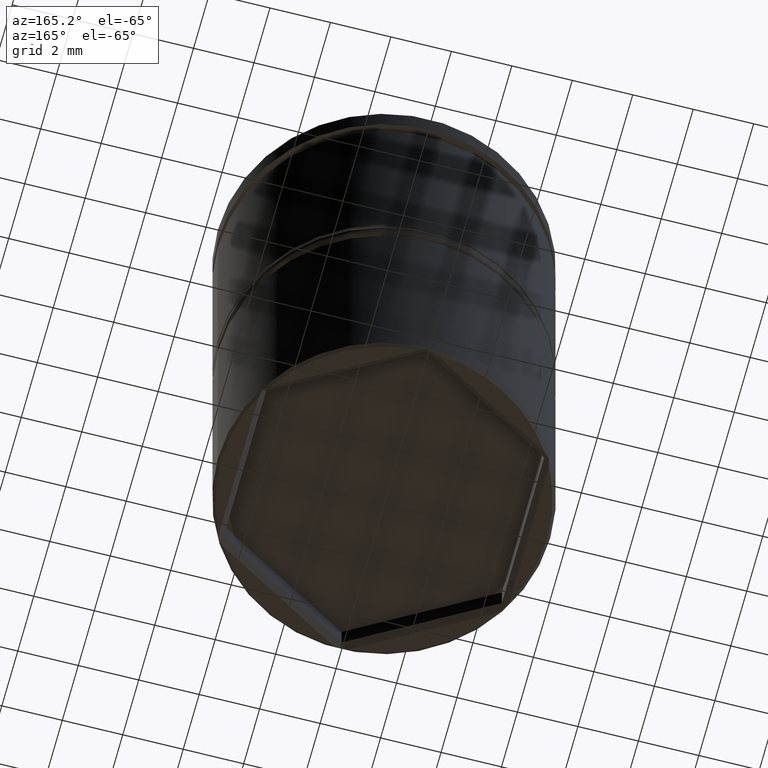
[diagram: clean part render]
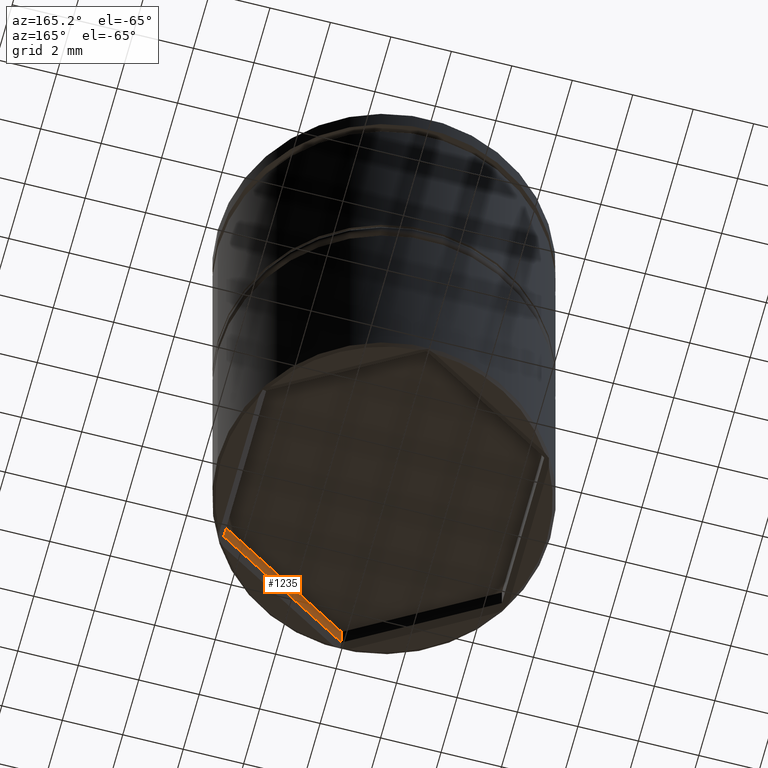
[diagram: same view with one face highlighted and labeled with its STEP entity id]
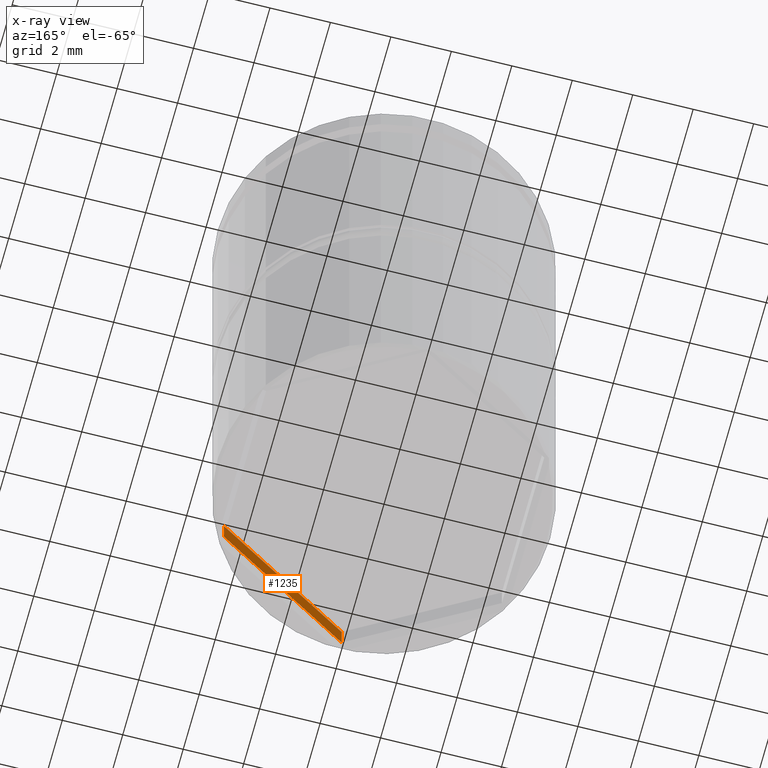
[diagram: x-ray of the same camera — body ghosted, the highlighted face saturated]
A machine part, auxiliary view. The second image highlights one B-rep face of the part: STEP entity #1235.
The next image is the same camera in x-ray: the body ghosted, the highlighted face saturated — about 0% of this face is hidden behind the body in this view.
In plain terms, the highlighted planar face has unit normal (0.5, -0.866, 0).
Its self-contained STEP definition (entity closure, byte-faithful):
#38 = LINE ( 'NONE', #463, #1239 ) ;
#87 = ORIENTED_EDGE ( 'NONE', *, *, #104, .T. ) ;
#104 = EDGE_CURVE ( 'NONE', #1272, #989, #491, .T. ) ;
#128 = CARTESIAN_POINT ( 'NONE',  ( -8.646952822150503169E-16, -5.311622476544560989, -16.50000000000000000 ) ) ;
#158 = DIRECTION ( 'NONE',  ( -0.8660254037844385966, -0.4999999999999999445, 0.000000000000000000 ) ) ;
#182 = LINE ( 'NONE', #815, #454 ) ;
#286 = DIRECTION ( 'NONE',  ( -0.000000000000000000, -0.000000000000000000, -1.000000000000000000 ) ) ;
#374 = DIRECTION ( 'NONE',  ( -0.000000000000000000, -0.000000000000000000, -1.000000000000000000 ) ) ;
#419 = VERTEX_POINT ( 'NONE', #128 ) ;
#454 = VECTOR ( 'NONE', #374, 1000.000000000000000 ) ;
#463 = CARTESIAN_POINT ( 'NONE',  ( 4.600000000000003197, -2.655811238272280050, -16.50000000000000000 ) ) ;
#491 = LINE ( 'NONE', #1117, #1133 ) ;
#500 = PLANE ( 'NONE',  #1282 ) ;
#554 = VERTEX_POINT ( 'NONE', #1040 ) ;
#707 = LINE ( 'NONE', #724, #793 ) ;
#714 = CARTESIAN_POINT ( 'NONE',  ( -8.646952822150503169E-16, -5.311622476544560989, -17.30000000000000426 ) ) ;
#716 = CARTESIAN_POINT ( 'NONE',  ( 4.600000000000003197, -2.655811238272280050, -17.30000000000000426 ) ) ;
#719 = EDGE_CURVE ( 'NONE', #554, #419, #38, .T. ) ;
#724 = CARTESIAN_POINT ( 'NONE',  ( 4.600000000000003197, -2.655811238272280050, -16.50000000000000000 ) ) ;
#784 = EDGE_LOOP ( 'NONE', ( #1029, #87, #1320, #996 ) ) ;
#793 = VECTOR ( 'NONE', #286, 1000.000000000000000 ) ;
#815 = CARTESIAN_POINT ( 'NONE',  ( -8.646952822150503169E-16, -5.311622476544560989, -16.50000000000000000 ) ) ;
#827 = FACE_OUTER_BOUND ( 'NONE', #784, .T. ) ;
#892 = DIRECTION ( 'NONE',  ( -0.8660254037844385966, -0.4999999999999999445, 0.000000000000000000 ) ) ;
#989 = VERTEX_POINT ( 'NONE', #714 ) ;
#996 = ORIENTED_EDGE ( 'NONE', *, *, #719, .F. ) ;
#1029 = ORIENTED_EDGE ( 'NONE', *, *, #1262, .T. ) ;
#1040 = CARTESIAN_POINT ( 'NONE',  ( 4.600000000000003197, -2.655811238272280050, -16.50000000000000000 ) ) ;
#1049 = CARTESIAN_POINT ( 'NONE',  ( 4.600000000000003197, -2.655811238272280050, -16.50000000000000000 ) ) ;
#1117 = CARTESIAN_POINT ( 'NONE',  ( -9.334475960612078863E-16, -5.311622476544560989, -17.30000000000000426 ) ) ;
#1133 = VECTOR ( 'NONE', #158, 1000.000000000000114 ) ;
#1193 = EDGE_CURVE ( 'NONE', #419, #989, #182, .T. ) ;
#1235 = ADVANCED_FACE ( 'NONE', ( #827 ), #500, .F. ) ;
#1239 = VECTOR ( 'NONE', #892, 1000.000000000000114 ) ;
#1254 = DIRECTION ( 'NONE',  ( 0.8660254037844385966, 0.4999999999999999445, 0.000000000000000000 ) ) ;
#1262 = EDGE_CURVE ( 'NONE', #554, #1272, #707, .T. ) ;
#1272 = VERTEX_POINT ( 'NONE', #716 ) ;
#1282 = AXIS2_PLACEMENT_3D ( 'NONE', #1049, #1356, #1254 ) ;
#1320 = ORIENTED_EDGE ( 'NONE', *, *, #1193, .F. ) ;
#1356 = DIRECTION ( 'NONE',  ( 0.5000000000000000000, -0.8660254037844387076, 0.000000000000000000 ) ) ;